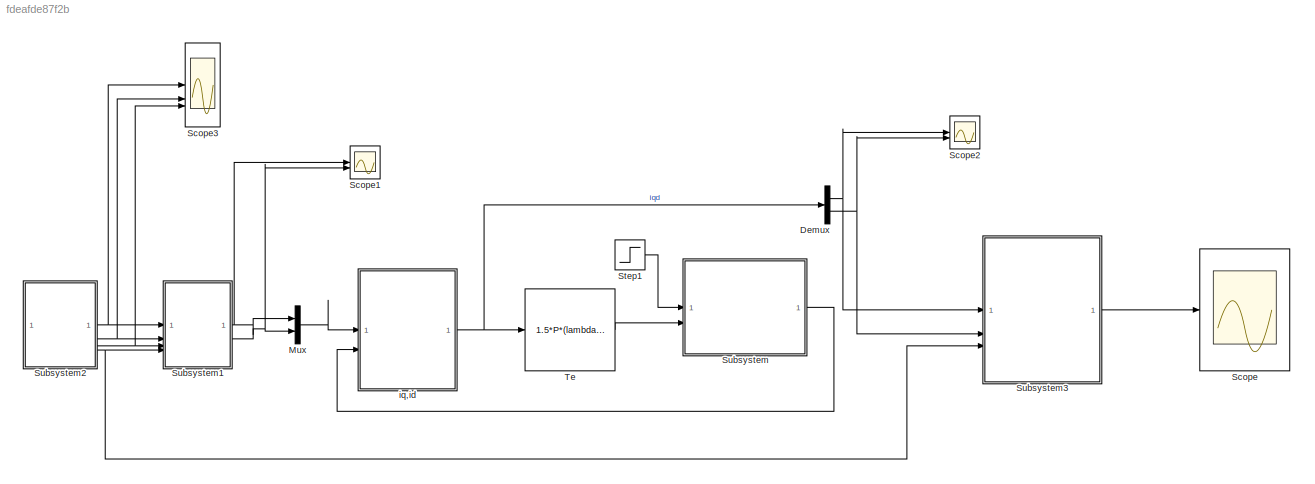
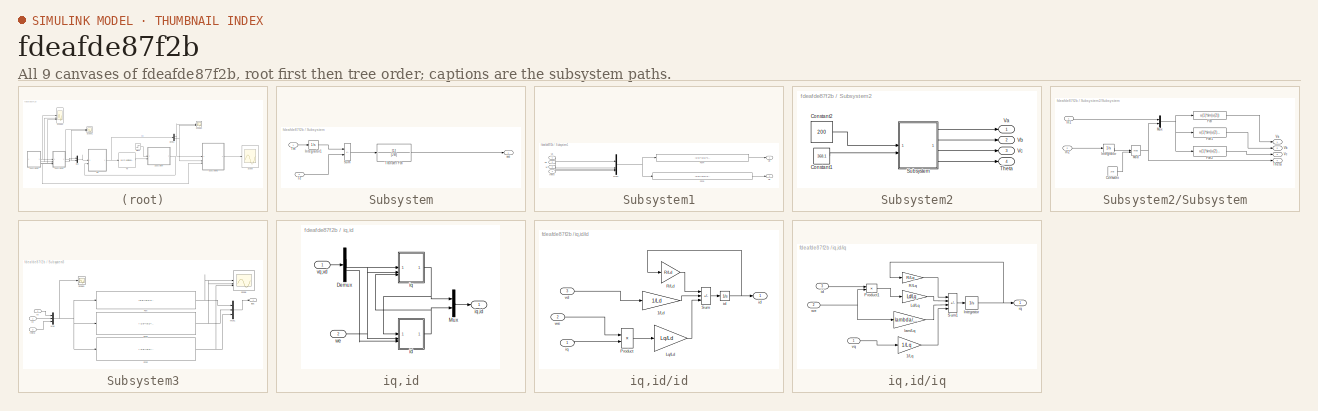
[diagram: thumbnail index - all 9 canvases of the model, root first then tree order]
MODEL slx_fdeafde87f2b
KIND model
CONFIG AbsTol = auto
CONFIG EnableMultiTasking = off
CONFIG FixedStep = auto
CONFIG MaxStep = auto
CONFIG MinStep = auto
CONFIG RelTol = 1e-3
CONFIG SampleTimeConstraint = Unconstrained
CONFIG SolverName = VariableStepAuto
CONFIG StartTime = 0.0
CONFIG StopTime = 15
BLOCK [Demux] Demux
  Outputs = 2
BLOCK [Mux] Mux
  DisplayOption = bar
  Inputs = 2
BLOCK [Scope] Scope
  Floating = off
  NumInputPorts = 1
  ScopeSpecificationString = Simulink.scopes.TimeScopeBlockCfg('CurrentConfiguration', extmgr.ConfigurationSet(extmgr.Configuration('Core','General UI',true),extmgr.Configuration('Core','Source UI',true),extmgr.Configuration('Sources','WiredSimulink',true),extmgr.Configuration('Visuals','Time Domain',true,'SerializedDisplays',{struct('MinYLimReal','-1900.43705','MaxYLimReal','1900.4144','YLabelReal','','MinYLimMag','  0.00000...<+1605ch>
BLOCK [Scope] Scope1
  Floating = off
  NumInputPorts = 2
  ScopeSpecificationString = Simulink.scopes.TimeScopeBlockCfg('CurrentConfiguration', extmgr.ConfigurationSet(extmgr.Configuration('Core','General UI',true),extmgr.Configuration('Core','Source UI',true),extmgr.Configuration('Sources','WiredSimulink',true,'DataLoggingVariableName','ScopeData1'),extmgr.Configuration('Visuals','Time Domain',true,'SerializedDisplays',{struct('MinYLimReal','-25.1532','MaxYLimReal','225.15312','YL...<+1448ch>
BLOCK [Scope] Scope2
  Floating = off
  NumInputPorts = 2
  ScopeSpecificationString = Simulink.scopes.TimeScopeBlockCfg('CurrentConfiguration', extmgr.ConfigurationSet(extmgr.Configuration('Core','General UI',true),extmgr.Configuration('Core','Source UI',true),extmgr.Configuration('Sources','WiredSimulink',true,'DataLoggingVariableName','ScopeData2'),extmgr.Configuration('Visuals','Time Domain',true,'SerializedDisplays',{struct('MinYLimReal','-285.0706','MaxYLimReal','2565.60523','...<+1446ch>
BLOCK [Scope] Scope3
  Floating = off
  NumInputPorts = 3
  ScopeSpecificationString = Simulink.scopes.TimeScopeBlockCfg('CurrentConfiguration', extmgr.ConfigurationSet(extmgr.Configuration('Core','General UI',true),extmgr.Configuration('Core','Source UI',true),extmgr.Configuration('Sources','WiredSimulink',true,'DataLoggingVariableName','ScopeData3'),extmgr.Configuration('Visuals','Time Domain',true,'SerializedDisplays',{struct('MinYLimReal','-250.00000','MaxYLimReal','250.00000','...<+1515ch>
BLOCK [Step] Step1
  SampleTime = 0
  Time = 0.1
BLOCK [SubSystem] Subsystem
BLOCK [Integrator] Subsystem/Integrator1
BLOCK [Sum] Subsystem/Sum
  IconShape = rectangular
  InputSameDT = on
  Inputs = -+
  OutDataTypeStr = Inherit: Same as first input
  SaturateOnIntegerOverflow = on
BLOCK [Inport] Subsystem/Te
  Port = 2
BLOCK [Inport] Subsystem/Tm
BLOCK [TransferFcn] Subsystem/Transfer Fcn
  Denominator = [J B]
BLOCK [Outport] Subsystem/we
BLOCK [SubSystem] Subsystem1
BLOCK [Fcn] Subsystem1/Fcn3
  Expr = (2/3)*(u[1]*sin(u[4])+u[2]*(sin(u[4]-((120*3.14)/180)))+u[3]*(sin(u[4]+((120*3.14)/180))))
BLOCK [Fcn] Subsystem1/Fcn4
  Expr = (2/3)*(u[1]*cos(u[4])+u[2]*(cos(u[4]-((120*3.14)/180)))+u[3]*(cos(u[4]+((120*3.14)/180))))
BLOCK [Mux] Subsystem1/Mux1
  DisplayOption = bar
BLOCK [Inport] Subsystem1/Va
BLOCK [Inport] Subsystem1/Vb
  Port = 2
BLOCK [Inport] Subsystem1/Vc
  Port = 3
BLOCK [Outport] Subsystem1/Vd
BLOCK [Outport] Subsystem1/Vq
  Port = 2
BLOCK [Inport] Subsystem1/theta
  Port = 4
BLOCK [SubSystem] Subsystem2
BLOCK [Constant] Subsystem2/Constant1
  Value = 368.1
BLOCK [Constant] Subsystem2/Constant2
  Value = 200
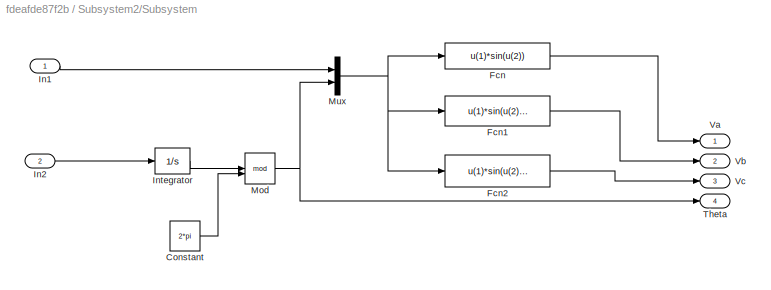
BLOCK [SubSystem] Subsystem2/Subsystem
BLOCK [Constant] Subsystem2/Subsystem/Constant
  Value = 2*pi
BLOCK [Fcn] Subsystem2/Subsystem/Fcn
  Expr = u(1)*sin(u(2))
BLOCK [Fcn] Subsystem2/Subsystem/Fcn1
  Expr = u(1)*sin(u(2)-2*pi/3)
BLOCK [Fcn] Subsystem2/Subsystem/Fcn2
  Expr = u(1)*sin(u(2)+2*pi/3)
BLOCK [Inport] Subsystem2/Subsystem/In1
BLOCK [Inport] Subsystem2/Subsystem/In2
  Port = 2
BLOCK [Integrator] Subsystem2/Subsystem/Integrator
BLOCK [Math] Subsystem2/Subsystem/Mod
  Operator = mod
BLOCK [Mux] Subsystem2/Subsystem/Mux
  DisplayOption = bar
  Inputs = 2
BLOCK [Outport] Subsystem2/Subsystem/Theta
  Port = 4
BLOCK [Outport] Subsystem2/Subsystem/Va
BLOCK [Outport] Subsystem2/Subsystem/Vb
  Port = 2
BLOCK [Outport] Subsystem2/Subsystem/Vc
  Port = 3
BLOCK [Outport] Subsystem2/Theta
  Port = 4
BLOCK [Outport] Subsystem2/Va
BLOCK [Outport] Subsystem2/Vb
  Port = 2
BLOCK [Outport] Subsystem2/Vc
  Port = 3
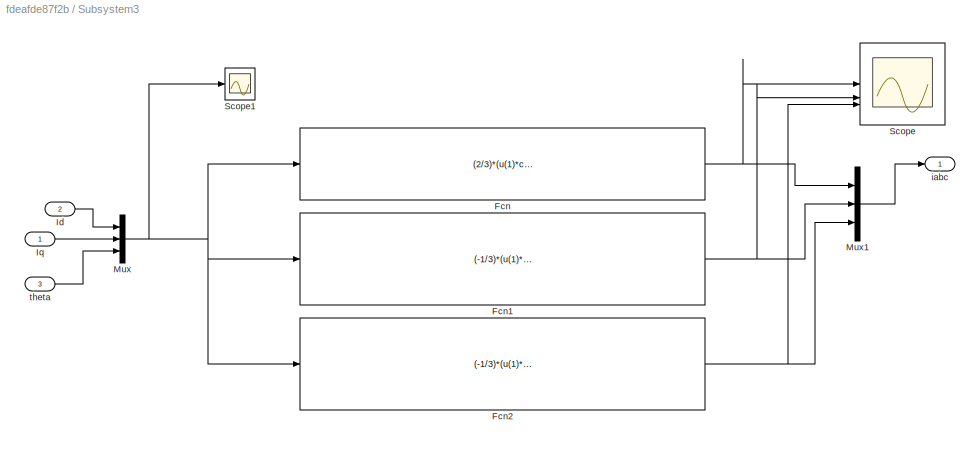
BLOCK [SubSystem] Subsystem3
BLOCK [Fcn] Subsystem3/Fcn
  Expr = (2/3)*(u(1)*cos(u(3))-u(2)*sin(u(3)))
BLOCK [Fcn] Subsystem3/Fcn1
  Expr = (-1/3)*(u(1)*(cos(u(3))+1.732*sin(u(3)))+u(2)*(1.732*cos(u(3))-sin(u(3))))
BLOCK [Fcn] Subsystem3/Fcn2
  Expr = (-1/3)*(u(1)*(cos(u(3))-1.732*sin(u(3)))-u(2)*(1.732*cos(u(3))-sin(u(3))))
BLOCK [Inport] Subsystem3/Id
  Port = 2
BLOCK [Inport] Subsystem3/Iq
BLOCK [Mux] Subsystem3/Mux
  DisplayOption = bar
  Inputs = 3
BLOCK [Mux] Subsystem3/Mux1
  DisplayOption = bar
  Inputs = 3
BLOCK [Scope] Subsystem3/Scope
  Floating = off
  NumInputPorts = 3
  ScopeSpecificationString = Simulink.scopes.TimeScopeBlockCfg('CurrentConfiguration', extmgr.ConfigurationSet(extmgr.Configuration('Core','General UI',true),extmgr.Configuration('Core','Source UI',true),extmgr.Configuration('Sources','WiredSimulink',true,'DataLoggingVariableName','ScopeData4'),extmgr.Configuration('Visuals','Time Domain',true,'SerializedDisplays',{struct('MinYLimReal','-1904.76118','MaxYLimReal','1904.76118'...<+1452ch>
BLOCK [Scope] Subsystem3/Scope1
  Floating = off
  NumInputPorts = 1
  ScopeSpecificationString = Simulink.scopes.TimeScopeBlockCfg('CurrentConfiguration', extmgr.ConfigurationSet(extmgr.Configuration('Core','General UI',true),extmgr.Configuration('Core','Source UI',true),extmgr.Configuration('Sources','WiredSimulink',true,'DataLoggingVariableName','ScopeData6'),extmgr.Configuration('Visuals','Time Domain',true,'SerializedDisplays',{struct('MinYLimReal','-285.0706','MaxYLimReal','2565.60523','...<+1444ch>
BLOCK [Outport] Subsystem3/iabc
BLOCK [Inport] Subsystem3/theta
  Port = 3
BLOCK [Fcn] Te 
  Expr = 1.5*P*(lambda*u(1)+(Ld-Lq)*u(1)*u(2))
BLOCK [SubSystem] iq,id
  AncestorBlock = spsPMSynchronousMachineModel/Continuous/iq,id
BLOCK [Demux] iq,id/Demux
  Outputs = 2
BLOCK [Mux] iq,id/Mux
  DisplayOption = bar
  Inputs = 2
BLOCK [SubSystem] iq,id/id
BLOCK [Gain] iq,id/id/1//Ld
  Gain = 1/Ld
  OutDataTypeStr = Inherit: Same as input
  ParamDataTypeStr = Inherit: Same as input
  SaturateOnIntegerOverflow = on
BLOCK [Gain] iq,id/id/Lq//Ld
  Gain = Lq/Ld
  OutDataTypeStr = Inherit: Same as input
  ParamDataTypeStr = Inherit: Same as input
  SaturateOnIntegerOverflow = on
BLOCK [Product] iq,id/id/Product
  InputSameDT = on
  OutDataTypeStr = Inherit: Same as first input
  SaturateOnIntegerOverflow = on
BLOCK [Gain] iq,id/id/R//Ld
  Gain = R/Ld
  OutDataTypeStr = Inherit: Same as input
  ParamDataTypeStr = Inherit: Same as input
  SaturateOnIntegerOverflow = on
BLOCK [Sum] iq,id/id/Sum
  IconShape = rectangular
  InputSameDT = on
  Inputs = -++
  OutDataTypeStr = Inherit: Same as first input
  SaturateOnIntegerOverflow = on
BLOCK [Outport] iq,id/id/id
  InitialOutput = 0
  VectorParamsAs1DForOutWhenUnconnected = off
BLOCK [Integrator] iq,id/id/id 
BLOCK [Inport] iq,id/id/iq
BLOCK [Inport] iq,id/id/vd
  Port = 3
BLOCK [Inport] iq,id/id/we
  Port = 2
BLOCK [SubSystem] iq,id/iq
BLOCK [Outport] iq,id/iq,id
  InitialOutput = 0
  VectorParamsAs1DForOutWhenUnconnected = off
BLOCK [Gain] iq,id/iq/1//Lq
  Gain = 1/Lq
  OutDataTypeStr = Inherit: Same as input
  ParamDataTypeStr = Inherit: Same as input
  SaturateOnIntegerOverflow = on
BLOCK [Integrator] iq,id/iq/Integrator
BLOCK [Gain] iq,id/iq/Ld//Lq
  Gain = Ld/Lq
  OutDataTypeStr = Inherit: Same as input
  ParamDataTypeStr = Inherit: Same as input
  SaturateOnIntegerOverflow = on
BLOCK [Product] iq,id/iq/Product1
  InputSameDT = on
  OutDataTypeStr = Inherit: Same as first input
  SaturateOnIntegerOverflow = on
BLOCK [Gain] iq,id/iq/R//Lq
  Gain = R/Lq
  OutDataTypeStr = Inherit: Same as input
  ParamDataTypeStr = Inherit: Same as input
  SaturateOnIntegerOverflow = on
BLOCK [Sum] iq,id/iq/Sum1
  IconShape = rectangular
  InputSameDT = on
  Inputs = ---+
  OutDataTypeStr = Inherit: Same as first input
  SaturateOnIntegerOverflow = on
BLOCK [Inport] iq,id/iq/id
  Port = 3
BLOCK [Outport] iq,id/iq/iq
  InitialOutput = 0
  VectorParamsAs1DForOutWhenUnconnected = off
BLOCK [Gain] iq,id/iq/lam//Lq
  Gain = lambda/Lq
  OutDataTypeStr = Inherit: Same as input
  ParamDataTypeStr = Inherit: Same as input
  SaturateOnIntegerOverflow = on
BLOCK [Inport] iq,id/iq/vq
BLOCK [Inport] iq,id/iq/we
  Port = 2
BLOCK [Inport] iq,id/vq,vd
BLOCK [Inport] iq,id/we
  Port = 2
NET Demux:1 -> Scope2:1, Subsystem3:1
NET Demux:2 -> Scope2:2, Subsystem3:2
LINE Mux:1 -> iq,id:1
LINE Step1:1 -> Subsystem:1
LINE Subsystem/Integrator1:1 -> Subsystem/Sum:1
LINE Subsystem/Sum:1 -> Subsystem/Transfer Fcn:1
LINE Subsystem/Te:1 -> Subsystem/Sum:2
LINE Subsystem/Tm:1 -> Subsystem/Integrator1:1
LINE Subsystem/Transfer Fcn:1 -> Subsystem/we:1
LINE Subsystem1/Fcn3:1 -> Subsystem1/Vq:1
LINE Subsystem1/Fcn4:1 -> Subsystem1/Vd:1
NET Subsystem1/Mux1:1 -> Subsystem1/Fcn3:1, Subsystem1/Fcn4:1
LINE Subsystem1/Va:1 -> Subsystem1/Mux1:1
LINE Subsystem1/Vb:1 -> Subsystem1/Mux1:2
LINE Subsystem1/Vc:1 -> Subsystem1/Mux1:3
LINE Subsystem1/theta:1 -> Subsystem1/Mux1:4
NET Subsystem1:1 -> Mux:1, Scope1:1
NET Subsystem1:2 -> Mux:2, Scope1:2
LINE Subsystem2/Constant1:1 -> Subsystem2/Subsystem:2
LINE Subsystem2/Constant2:1 -> Subsystem2/Subsystem:1
LINE Subsystem2/Subsystem/Constant:1 -> Subsystem2/Subsystem/Mod:2
LINE Subsystem2/Subsystem/Fcn1:1 -> Subsystem2/Subsystem/Vb:1
LINE Subsystem2/Subsystem/Fcn2:1 -> Subsystem2/Subsystem/Vc:1
LINE Subsystem2/Subsystem/Fcn:1 -> Subsystem2/Subsystem/Va:1
LINE Subsystem2/Subsystem/In1:1 -> Subsystem2/Subsystem/Mux:1
LINE Subsystem2/Subsystem/In2:1 -> Subsystem2/Subsystem/Integrator:1
LINE Subsystem2/Subsystem/Integrator:1 -> Subsystem2/Subsystem/Mod:1
NET Subsystem2/Subsystem/Mod:1 -> Subsystem2/Subsystem/Mux:2, Subsystem2/Subsystem/Theta:1
NET Subsystem2/Subsystem/Mux:1 -> Subsystem2/Subsystem/Fcn1:1, Subsystem2/Subsystem/Fcn2:1, Subsystem2/Subsystem/Fcn:1
LINE Subsystem2/Subsystem:1 -> Subsystem2/Va:1
LINE Subsystem2/Subsystem:2 -> Subsystem2/Vb:1
LINE Subsystem2/Subsystem:3 -> Subsystem2/Vc:1
LINE Subsystem2/Subsystem:4 -> Subsystem2/Theta:1
NET Subsystem2:1 -> Scope3:1, Subsystem1:1
NET Subsystem2:2 -> Scope3:2, Subsystem1:2
NET Subsystem2:3 -> Scope3:3, Subsystem1:3
NET Subsystem2:4 -> Subsystem1:4, Subsystem3:3
NET Subsystem3/Fcn1:1 -> Subsystem3/Mux1:2, Subsystem3/Scope:2
NET Subsystem3/Fcn2:1 -> Subsystem3/Mux1:3, Subsystem3/Scope:3
NET Subsystem3/Fcn:1 -> Subsystem3/Mux1:1, Subsystem3/Scope:1
LINE Subsystem3/Id:1 -> Subsystem3/Mux:1
LINE Subsystem3/Iq:1 -> Subsystem3/Mux:2
LINE Subsystem3/Mux1:1 -> Subsystem3/iabc:1
NET Subsystem3/Mux:1 -> Subsystem3/Fcn1:1, Subsystem3/Fcn2:1, Subsystem3/Fcn:1, Subsystem3/Scope1:1
LINE Subsystem3/theta:1 -> Subsystem3/Mux:3
LINE Subsystem3:1 -> Scope:1
LINE Subsystem:1 -> iq,id:2
LINE Te :1 -> Subsystem:2
NET iq,id:1 -> Demux:1, Te :1
note: NET lines group one-source signal fan-out (src -> all destinations, sorted); 1:1 wires keep LINE
